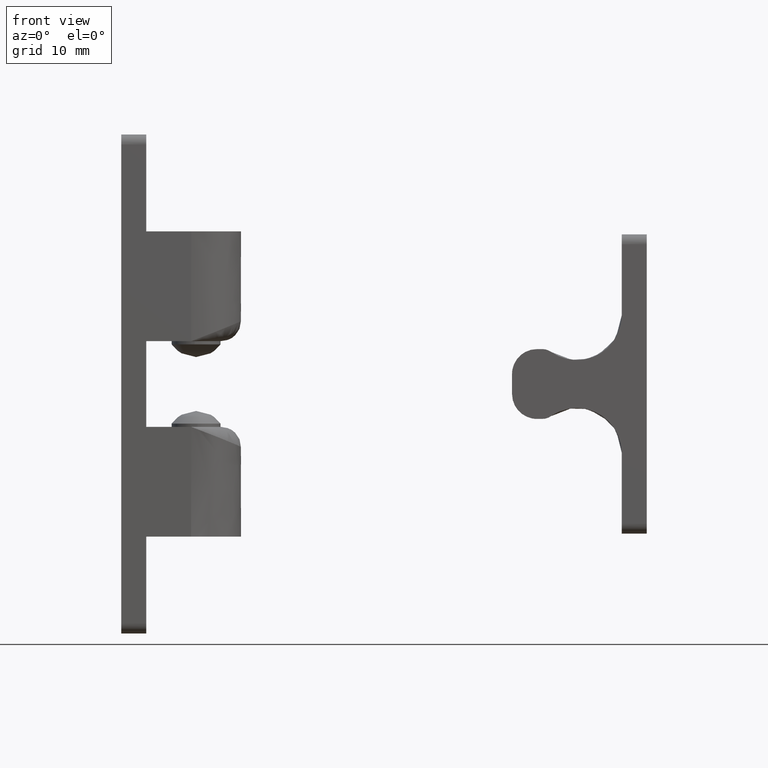
[diagram: clean part render]
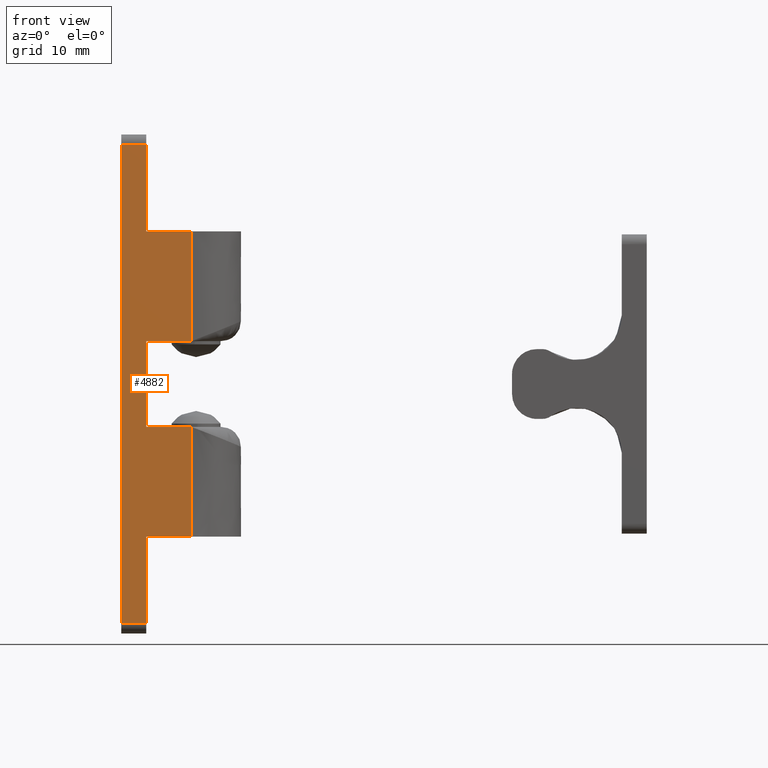
[diagram: same view with one face highlighted and labeled with its STEP entity id]
A machine part, front view. The second image highlights one B-rep face of the part: STEP entity #4882.
In plain terms, the highlighted face is a freeform B-spline surface patch.
Its self-contained STEP definition (entity closure, byte-faithful):
#4217=CARTESIAN_POINT('',(-4.300000000000000,-5.0,7.0));
#4218=VERTEX_POINT('',#4217);
#4386=CARTESIAN_POINT('',(-24.0,-5.0,2.500000000000000));
#4387=VERTEX_POINT('',#4386);
#4408=CARTESIAN_POINT('',(-24.0,-5.0,0.0));
#4409=VERTEX_POINT('',#4408);
#4423=CARTESIAN_POINT('',(-24.0,-5.0,2.500000000000000));
#4424=CARTESIAN_POINT('',(-24.0,-5.0,0.0));
#4425=QUASI_UNIFORM_CURVE('',1,(#4423,#4424),.UNSPECIFIED.,.F.,.U.);
#4426=EDGE_CURVE('',#4387,#4409,#4425,.T.);
#4508=CARTESIAN_POINT('',(24.0,-5.0,0.0));
#4509=VERTEX_POINT('',#4508);
#4530=CARTESIAN_POINT('',(24.0,-5.0,2.500000000000000));
#4531=VERTEX_POINT('',#4530);
#4545=CARTESIAN_POINT('',(24.0,-5.0,0.0));
#4546=CARTESIAN_POINT('',(24.0,-5.0,2.500000000000000));
#4547=QUASI_UNIFORM_CURVE('',1,(#4545,#4546),.UNSPECIFIED.,.F.,.U.);
#4548=EDGE_CURVE('',#4509,#4531,#4547,.T.);
#4603=CARTESIAN_POINT('',(4.300000000000000,-5.0,7.0));
#4604=VERTEX_POINT('',#4603);
#4679=CARTESIAN_POINT('',(-15.300000000000001,-5.0,7.0));
#4680=VERTEX_POINT('',#4679);
#4681=CARTESIAN_POINT('',(-4.300000000000000,-5.0,7.0));
#4682=CARTESIAN_POINT('',(-15.300000000000001,-5.0,7.0));
#4683=QUASI_UNIFORM_CURVE('',1,(#4681,#4682),.UNSPECIFIED.,.F.,.U.);
#4684=EDGE_CURVE('',#4218,#4680,#4683,.T.);
#4738=CARTESIAN_POINT('',(15.300000000000001,-5.0,7.0));
#4739=VERTEX_POINT('',#4738);
#4740=CARTESIAN_POINT('',(15.300000000000001,-5.0,7.0));
#4741=CARTESIAN_POINT('',(4.300000000000000,-5.0,7.0));
#4742=QUASI_UNIFORM_CURVE('',1,(#4740,#4741),.UNSPECIFIED.,.F.,.U.);
#4743=EDGE_CURVE('',#4739,#4604,#4742,.T.);
#4823=CARTESIAN_POINT('',(-26.397599906966690,-5.0,7.349649986432643));
#4824=CARTESIAN_POINT('',(26.397601194427018,-5.0,7.349649986432644));
#4825=CARTESIAN_POINT('',(-26.397599906966690,-5.0,-0.349650174187272));
#4826=CARTESIAN_POINT('',(26.397601194427018,-5.0,-0.349650174187272));
#4827=B_SPLINE_SURFACE_WITH_KNOTS('',1,1,((#4823,#4825),(#4824,#4826)),.UNSPECIFIED.,.F.,.F.,.U.,(2,2),(2,2),(0.0,52.795201101393701),(0.0,7.699300160619917),.UNSPECIFIED.);
#4828=CARTESIAN_POINT('',(-24.0,-5.0,0.0));
#4829=CARTESIAN_POINT('',(24.0,-5.0,0.0));
#4830=QUASI_UNIFORM_CURVE('',1,(#4828,#4829),.UNSPECIFIED.,.F.,.U.);
#4831=EDGE_CURVE('',#4409,#4509,#4830,.T.);
#4832=ORIENTED_EDGE('',*,*,#4831,.T.);
#4833=ORIENTED_EDGE('',*,*,#4548,.T.);
#4834=CARTESIAN_POINT('',(15.300000000000001,-5.0,2.500000000000000));
#4835=VERTEX_POINT('',#4834);
#4836=CARTESIAN_POINT('',(24.0,-5.0,2.500000000000000));
#4837=CARTESIAN_POINT('',(15.300000000000001,-5.0,2.500000000000000));
#4838=QUASI_UNIFORM_CURVE('',1,(#4836,#4837),.UNSPECIFIED.,.F.,.U.);
#4839=EDGE_CURVE('',#4531,#4835,#4838,.T.);
#4840=ORIENTED_EDGE('',*,*,#4839,.T.);
#4841=CARTESIAN_POINT('',(15.300000000000001,-5.0,2.500000000000000));
#4842=CARTESIAN_POINT('',(15.300000000000001,-5.0,7.0));
#4843=QUASI_UNIFORM_CURVE('',1,(#4841,#4842),.UNSPECIFIED.,.F.,.U.);
#4844=EDGE_CURVE('',#4835,#4739,#4843,.T.);
#4845=ORIENTED_EDGE('',*,*,#4844,.T.);
#4846=ORIENTED_EDGE('',*,*,#4743,.T.);
#4847=CARTESIAN_POINT('',(4.300000000000000,-5.0,2.500000000000000));
#4848=VERTEX_POINT('',#4847);
#4849=CARTESIAN_POINT('',(4.300000000000000,-5.0,7.0));
#4850=CARTESIAN_POINT('',(4.300000000000000,-5.0,2.500000000000000));
#4851=QUASI_UNIFORM_CURVE('',1,(#4849,#4850),.UNSPECIFIED.,.F.,.U.);
#4852=EDGE_CURVE('',#4604,#4848,#4851,.T.);
#4853=ORIENTED_EDGE('',*,*,#4852,.T.);
#4854=CARTESIAN_POINT('',(-4.300000000000000,-5.0,2.500000000000000));
#4855=VERTEX_POINT('',#4854);
#4856=CARTESIAN_POINT('',(4.300000000000000,-5.0,2.500000000000000));
#4857=CARTESIAN_POINT('',(-4.300000000000000,-5.0,2.500000000000000));
#4858=QUASI_UNIFORM_CURVE('',1,(#4856,#4857),.UNSPECIFIED.,.F.,.U.);
#4859=EDGE_CURVE('',#4848,#4855,#4858,.T.);
#4860=ORIENTED_EDGE('',*,*,#4859,.T.);
#4861=CARTESIAN_POINT('',(-4.300000000000000,-5.0,2.500000000000000));
#4862=CARTESIAN_POINT('',(-4.300000000000000,-5.0,7.0));
#4863=QUASI_UNIFORM_CURVE('',1,(#4861,#4862),.UNSPECIFIED.,.F.,.U.);
#4864=EDGE_CURVE('',#4855,#4218,#4863,.T.);
#4865=ORIENTED_EDGE('',*,*,#4864,.T.);
#4866=ORIENTED_EDGE('',*,*,#4684,.T.);
#4867=CARTESIAN_POINT('',(-15.300000000000001,-5.0,2.500000000000000));
#4868=VERTEX_POINT('',#4867);
#4869=CARTESIAN_POINT('',(-15.300000000000001,-5.0,7.0));
#4870=CARTESIAN_POINT('',(-15.300000000000001,-5.0,2.500000000000000));
#4871=QUASI_UNIFORM_CURVE('',1,(#4869,#4870),.UNSPECIFIED.,.F.,.U.);
#4872=EDGE_CURVE('',#4680,#4868,#4871,.T.);
#4873=ORIENTED_EDGE('',*,*,#4872,.T.);
#4874=CARTESIAN_POINT('',(-15.300000000000001,-5.0,2.500000000000000));
#4875=CARTESIAN_POINT('',(-24.0,-5.0,2.500000000000000));
#4876=QUASI_UNIFORM_CURVE('',1,(#4874,#4875),.UNSPECIFIED.,.F.,.U.);
#4877=EDGE_CURVE('',#4868,#4387,#4876,.T.);
#4878=ORIENTED_EDGE('',*,*,#4877,.T.);
#4879=ORIENTED_EDGE('',*,*,#4426,.T.);
#4880=EDGE_LOOP('',(#4832,#4833,#4840,#4845,#4846,#4853,#4860,#4865,#4866,#4873,#4878,#4879));
#4881=FACE_OUTER_BOUND('',#4880,.T.);
#4882=ADVANCED_FACE('',(#4881),#4827,.F.);